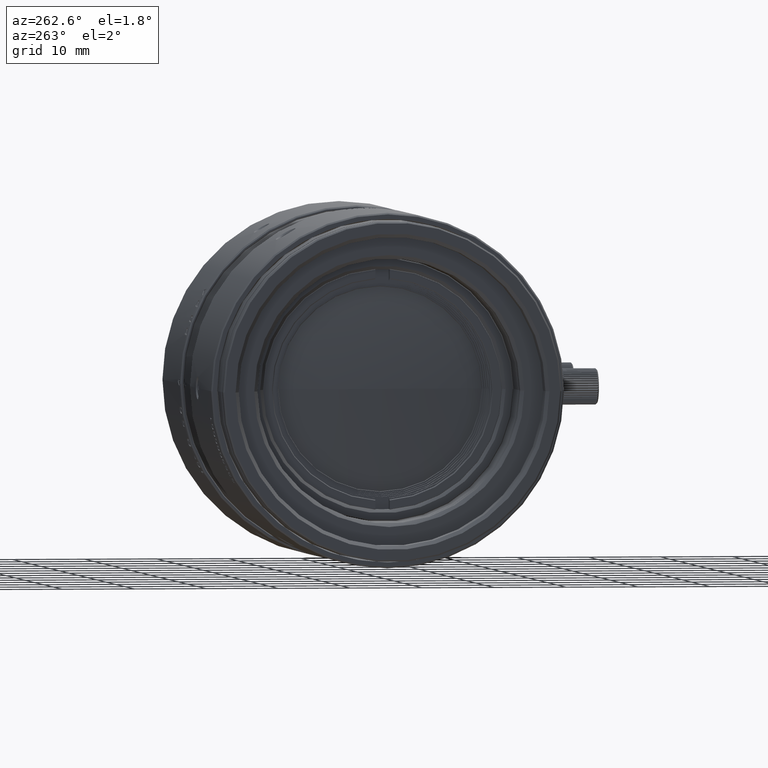
[diagram: clean part render]
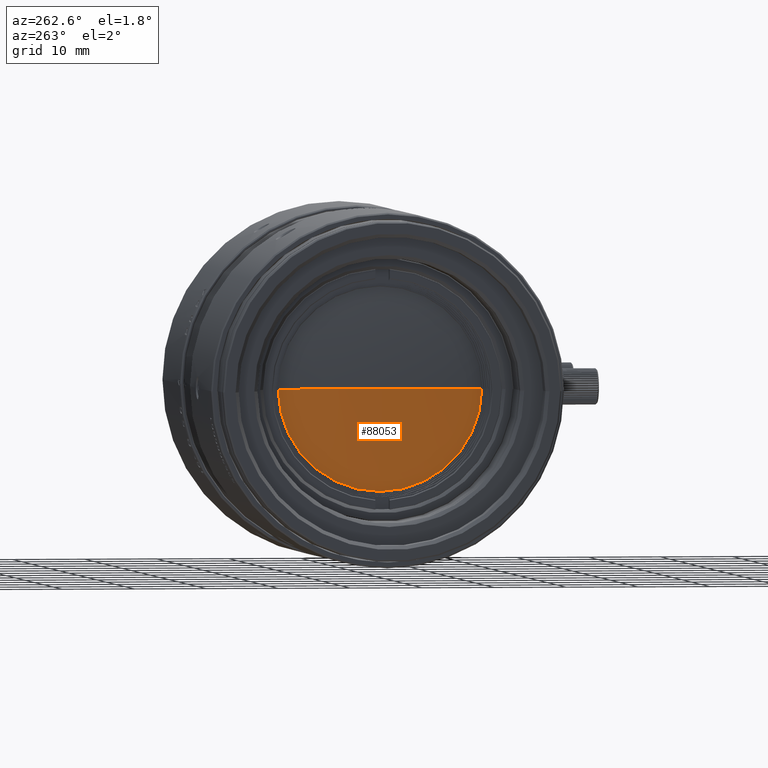
[diagram: same view with one face highlighted and labeled with its STEP entity id]
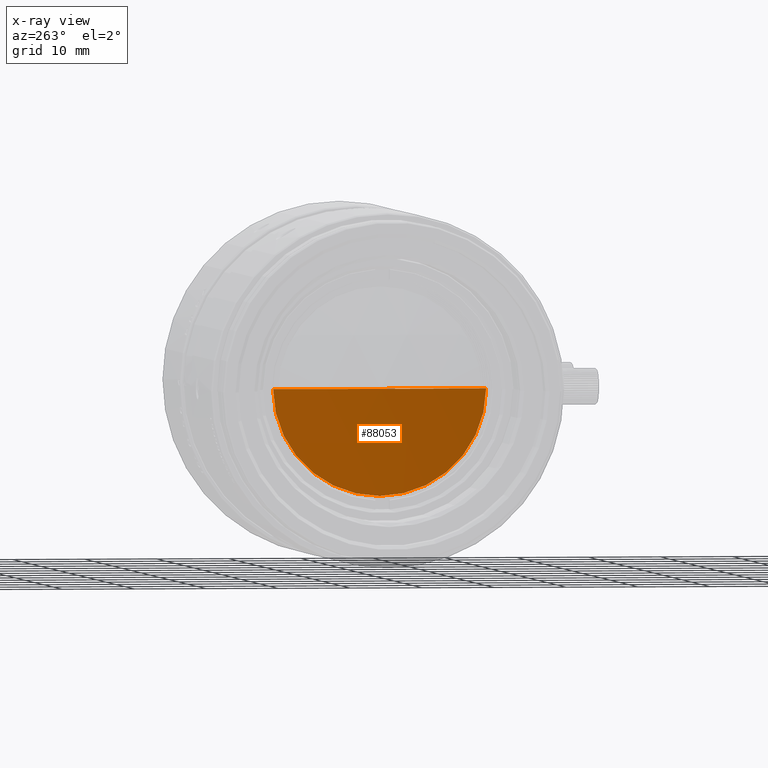
[diagram: x-ray of the same camera — body ghosted, the highlighted face saturated]
A machine part, auxiliary view. The second image highlights one B-rep face of the part: STEP entity #88053.
The next image is the same camera in x-ray: the body ghosted, the highlighted face saturated — about 0% of this face is hidden behind the body in this view.
In plain terms, the highlighted spherical surface has radius 90.5 mm.
Its self-contained STEP definition (entity closure, byte-faithful):
#6488 = VERTEX_POINT ( 'NONE', #17120 ) ;
#11648 = EDGE_CURVE ( 'NONE', #6488, #48410, #119873, .T. ) ;
#17120 = CARTESIAN_POINT ( 'NONE',  ( -54.44823434879000246, -14.80000000000000071, 0.000000000000000000 ) ) ;
#20098 = CARTESIAN_POINT ( 'NONE',  ( -54.44823434877000068, 0.000000000000000000, 6.481037928582000258E-12 ) ) ;
#23939 = CARTESIAN_POINT ( 'NONE',  ( 34.83339870020999740, -1.099561274137999941E-13, 4.819139182308999649E-10 ) ) ;
#24617 = DIRECTION ( 'NONE',  ( 0.000000000000000000, 1.000000000000000000, -2.180097683868001238E-13 ) ) ;
#30694 = EDGE_CURVE ( 'NONE', #6488, #48410, #42722, .T. ) ;
#35823 = DIRECTION ( 'NONE',  ( 5.325091668534999114E-12, -2.180097683868001238E-13, -1.000000000000000000 ) ) ;
#42722 = CIRCLE ( 'NONE', #44913, 90.49999999941003637 ) ;
#44913 = AXIS2_PLACEMENT_3D ( 'NONE', #108680, #77144, #131120 ) ;
#48410 = VERTEX_POINT ( 'NONE', #117800 ) ;
#50929 = DIRECTION ( 'NONE',  ( 1.000000000000000000, -2.331900072717819824E-24, 5.325091668534999922E-12 ) ) ;
#60391 = ORIENTED_EDGE ( 'NONE', *, *, #30694, .T. ) ;
#69325 = AXIS2_PLACEMENT_3D ( 'NONE', #23939, #35823, #24617 ) ;
#77144 = DIRECTION ( 'NONE',  ( -5.325091668534449814E-12, -4.379079681453089980E-13, -1.000000000000000000 ) ) ;
#83922 = DIRECTION ( 'NONE',  ( 0.000000000000000000, -1.000000000000000000, -4.379079681382000107E-13 ) ) ;
#86267 = AXIS2_PLACEMENT_3D ( 'NONE', #20098, #50929, #83922 ) ;
#88053 = ADVANCED_FACE ( 'NONE', ( #89111 ), #90485, .T. ) ;
#89111 = FACE_OUTER_BOUND ( 'NONE', #116896, .T. ) ;
#89754 = ORIENTED_EDGE ( 'NONE', *, *, #11648, .F. ) ;
#90485 = SPHERICAL_SURFACE ( 'NONE', #69325, 90.49999999940999373 ) ;
#108680 = CARTESIAN_POINT ( 'NONE',  ( 34.83339870020999740, 1.099561274137999941E-13, -4.819139182308999649E-10 ) ) ;
#116896 = EDGE_LOOP ( 'NONE', ( #89754, #60391 ) ) ;
#117800 = CARTESIAN_POINT ( 'NONE',  ( -54.44823434879000246, 14.80000000000000071, 0.000000000000000000 ) ) ;
#119873 = CIRCLE ( 'NONE', #86267, 14.79999999998999982 ) ;
#131120 = DIRECTION ( 'NONE',  ( -0.9865373817631446496, -0.1635359116032909232, 5.325015671093698718E-12 ) ) ;